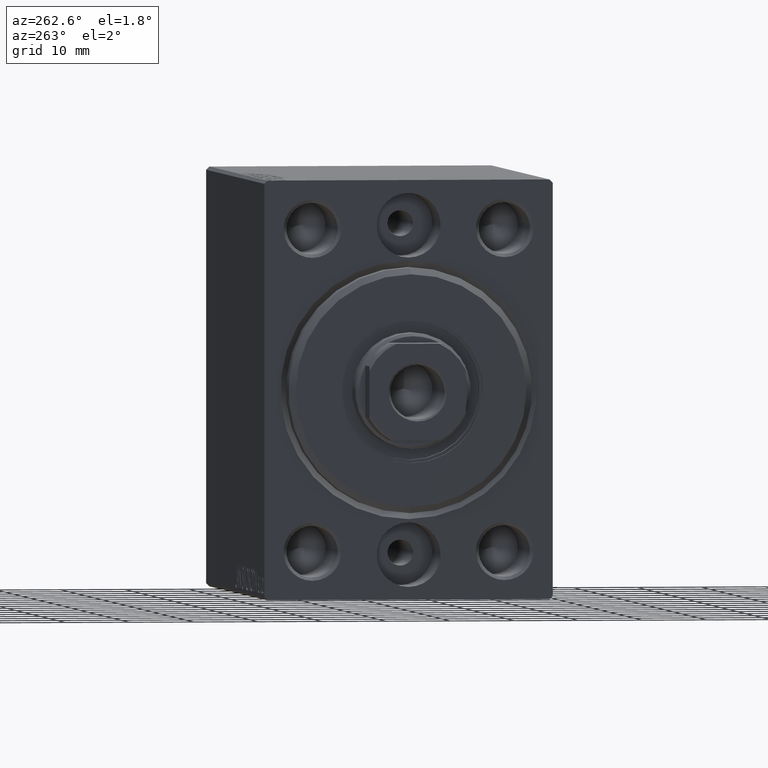
[diagram: clean part render]
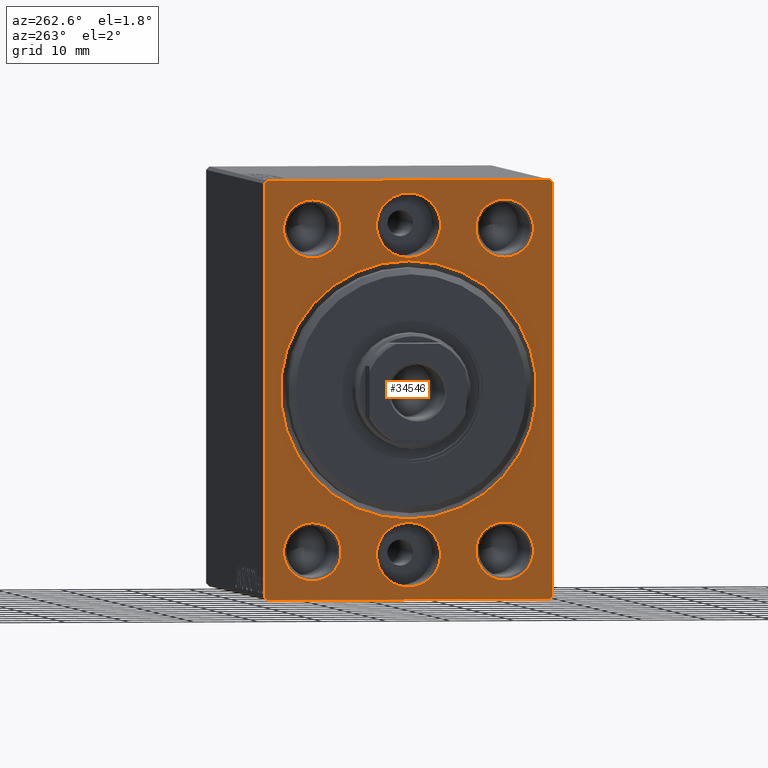
[diagram: same view with one face highlighted and labeled with its STEP entity id]
A machine part, auxiliary view. The second image highlights one B-rep face of the part: STEP entity #34546.
In plain terms, the highlighted planar face has unit normal (1, 0, 0).
Its self-contained STEP definition (entity closure, byte-faithful):
#350 = DIRECTION ( 'NONE',  ( -0.000000000000000000, 0.7071067811865474617, 0.7071067811865474617 ) ) ;
#1023 = DIRECTION ( 'NONE',  ( 0.000000000000000000, 0.000000000000000000, -1.000000000000000000 ) ) ;
#1095 = ORIENTED_EDGE ( 'NONE', *, *, #23883, .T. ) ;
#1267 = AXIS2_PLACEMENT_3D ( 'NONE', #5264, #15529, #21568 ) ;
#1679 = VERTEX_POINT ( 'NONE', #10817 ) ;
#1690 = VECTOR ( 'NONE', #37136, 1000.000000000000000 ) ;
#1974 = DIRECTION ( 'NONE',  ( 1.000000000000000000, 0.000000000000000000, 0.000000000000000000 ) ) ;
#2215 = EDGE_CURVE ( 'NONE', #25398, #7834, #31173, .T. ) ;
#2382 = DIRECTION ( 'NONE',  ( 1.000000000000000000, 0.000000000000000000, 0.000000000000000000 ) ) ;
#2495 = EDGE_CURVE ( 'NONE', #26576, #31650, #26207, .T. ) ;
#3053 = VERTEX_POINT ( 'NONE', #18561 ) ;
#3059 = CARTESIAN_POINT ( 'NONE',  ( 0.000000000000000000, 0.000000000000000000, 25.50000000000000000 ) ) ;
#3079 = EDGE_LOOP ( 'NONE', ( #7674, #35006 ) ) ;
#3252 = ORIENTED_EDGE ( 'NONE', *, *, #7005, .F. ) ;
#3399 = VERTEX_POINT ( 'NONE', #18719 ) ;
#3542 = CARTESIAN_POINT ( 'NONE',  ( 0.000000000000000000, 0.000000000000000000, 0.000000000000000000 ) ) ;
#3568 = CARTESIAN_POINT ( 'NONE',  ( 0.000000000000000000, 22.50000000000000000, 32.49999999999999289 ) ) ;
#3829 = CARTESIAN_POINT ( 'NONE',  ( 0.000000000000000000, 21.99999999999999289, -32.50000000000000711 ) ) ;
#3887 = CIRCLE ( 'NONE', #15975, 5.000000000000000888 ) ;
#3904 = DIRECTION ( 'NONE',  ( 0.000000000000000000, 0.000000000000000000, 1.000000000000000000 ) ) ;
#3943 = LINE ( 'NONE', #6409, #38354 ) ;
#3960 = DIRECTION ( 'NONE',  ( 1.000000000000000000, 0.000000000000000000, 0.000000000000000000 ) ) ;
#4089 = CARTESIAN_POINT ( 'NONE',  ( 0.000000000000000000, 15.00000000000000178, -29.49999999999997868 ) ) ;
#4604 = DIRECTION ( 'NONE',  ( 1.000000000000000000, 0.000000000000000000, 0.000000000000000000 ) ) ;
#5264 = CARTESIAN_POINT ( 'NONE',  ( 0.000000000000000000, -15.00000000000000000, 25.00000000000000000 ) ) ;
#5509 = DIRECTION ( 'NONE',  ( 1.000000000000000000, 0.000000000000000000, 0.000000000000000000 ) ) ;
#5556 = EDGE_CURVE ( 'NONE', #23673, #21761, #6248, .T. ) ;
#5623 = CIRCLE ( 'NONE', #7055, 5.000000000000000888 ) ;
#5656 = DIRECTION ( 'NONE',  ( 0.000000000000000000, 0.000000000000000000, 1.000000000000000000 ) ) ;
#5923 = CARTESIAN_POINT ( 'NONE',  ( 0.000000000000000000, -15.00000000000000000, 20.50000000000002487 ) ) ;
#5974 = CIRCLE ( 'NONE', #28039, 4.499999999999976019 ) ;
#6068 = CARTESIAN_POINT ( 'NONE',  ( 0.000000000000000000, 15.00000000000000178, 25.00000000000000000 ) ) ;
#6248 = CIRCLE ( 'NONE', #17646, 5.000000000000000888 ) ;
#6282 = DIRECTION ( 'NONE',  ( 1.000000000000000000, 0.000000000000000000, 0.000000000000000000 ) ) ;
#6409 = CARTESIAN_POINT ( 'NONE',  ( 0.000000000000000000, -22.49999999999999289, 31.99999999999998579 ) ) ;
#6793 = CARTESIAN_POINT ( 'NONE',  ( 0.000000000000000000, -21.99999999999999289, -32.50000000000000711 ) ) ;
#7005 = EDGE_CURVE ( 'NONE', #8034, #12197, #24042, .T. ) ;
#7055 = AXIS2_PLACEMENT_3D ( 'NONE', #13499, #24416, #3904 ) ;
#7127 = CARTESIAN_POINT ( 'NONE',  ( 0.000000000000000000, 21.99999999999998579, 32.49999999999999289 ) ) ;
#7674 = ORIENTED_EDGE ( 'NONE', *, *, #39263, .T. ) ;
#7834 = VERTEX_POINT ( 'NONE', #29322 ) ;
#8034 = VERTEX_POINT ( 'NONE', #17269 ) ;
#8378 = EDGE_CURVE ( 'NONE', #30626, #15633, #41942, .T. ) ;
#8401 = EDGE_LOOP ( 'NONE', ( #21753, #33268, #19887, #28230, #13322, #31819, #3252, #33223 ) ) ;
#8574 = EDGE_CURVE ( 'NONE', #25690, #3399, #34802, .T. ) ;
#9111 = AXIS2_PLACEMENT_3D ( 'NONE', #36080, #42985, #32745 ) ;
#10396 = VERTEX_POINT ( 'NONE', #38742 ) ;
#10507 = ORIENTED_EDGE ( 'NONE', *, *, #2495, .T. ) ;
#10588 = EDGE_CURVE ( 'NONE', #38473, #28267, #24596, .T. ) ;
#10817 = CARTESIAN_POINT ( 'NONE',  ( 0.000000000000000000, -15.00000000000000000, -29.49999999999997868 ) ) ;
#11673 = EDGE_LOOP ( 'NONE', ( #37924, #34302 ) ) ;
#12197 = VERTEX_POINT ( 'NONE', #3829 ) ;
#12527 = CARTESIAN_POINT ( 'NONE',  ( 0.000000000000000000, -15.00000000000000000, 25.00000000000000000 ) ) ;
#12532 = DIRECTION ( 'NONE',  ( 0.000000000000000000, 0.000000000000000000, -1.000000000000000000 ) ) ;
#12574 = EDGE_CURVE ( 'NONE', #1679, #3053, #5974, .T. ) ;
#12655 = CARTESIAN_POINT ( 'NONE',  ( 0.000000000000000000, 15.00000000000000178, -25.00000000000000000 ) ) ;
#12957 = EDGE_CURVE ( 'NONE', #7834, #25398, #29458, .T. ) ;
#13310 = DIRECTION ( 'NONE',  ( -1.000000000000000000, 0.000000000000000000, 0.000000000000000000 ) ) ;
#13322 = ORIENTED_EDGE ( 'NONE', *, *, #19547, .F. ) ;
#13499 = CARTESIAN_POINT ( 'NONE',  ( 0.000000000000000000, 0.000000000000000000, -25.50000000000000000 ) ) ;
#13793 = FACE_OUTER_BOUND ( 'NONE', #8401, .T. ) ;
#13811 = AXIS2_PLACEMENT_3D ( 'NONE', #6068, #25916, #12532 ) ;
#14094 = VERTEX_POINT ( 'NONE', #7127 ) ;
#14111 = VECTOR ( 'NONE', #37647, 1000.000000000000000 ) ;
#14460 = EDGE_CURVE ( 'NONE', #8034, #10396, #37345, .T. ) ;
#14574 = VERTEX_POINT ( 'NONE', #42230 ) ;
#14650 = CARTESIAN_POINT ( 'NONE',  ( 0.000000000000000000, -15.00000000000000000, 29.49999999999997868 ) ) ;
#14812 = VERTEX_POINT ( 'NONE', #30594 ) ;
#14855 = CARTESIAN_POINT ( 'NONE',  ( 0.000000000000000000, -15.00000000000000000, -25.00000000000000000 ) ) ;
#14950 = CARTESIAN_POINT ( 'NONE',  ( 0.000000000000000000, 15.00000000000000178, -25.00000000000000000 ) ) ;
#15171 = EDGE_CURVE ( 'NONE', #14094, #33412, #34116, .T. ) ;
#15529 = DIRECTION ( 'NONE',  ( 1.000000000000000000, 0.000000000000000000, 0.000000000000000000 ) ) ;
#15633 = VERTEX_POINT ( 'NONE', #25983 ) ;
#15975 = AXIS2_PLACEMENT_3D ( 'NONE', #3059, #13310, #30041 ) ;
#16448 = LINE ( 'NONE', #39864, #21679 ) ;
#16694 = FACE_BOUND ( 'NONE', #30105, .T. ) ;
#16931 = EDGE_LOOP ( 'NONE', ( #43009, #20226 ) ) ;
#16974 = CARTESIAN_POINT ( 'NONE',  ( 0.000000000000000000, 6.123233995736765296E-16, 20.49999999999999645 ) ) ;
#17269 = CARTESIAN_POINT ( 'NONE',  ( 0.000000000000000000, -21.99999999999999289, -32.50000000000000711 ) ) ;
#17551 = DIRECTION ( 'NONE',  ( 0.000000000000000000, 0.000000000000000000, -1.000000000000000000 ) ) ;
#17568 = ORIENTED_EDGE ( 'NONE', *, *, #2215, .T. ) ;
#17646 = AXIS2_PLACEMENT_3D ( 'NONE', #29718, #36193, #5656 ) ;
#18201 = ORIENTED_EDGE ( 'NONE', *, *, #8574, .T. ) ;
#18561 = CARTESIAN_POINT ( 'NONE',  ( 0.000000000000000000, -15.00000000000000000, -20.50000000000002487 ) ) ;
#18719 = CARTESIAN_POINT ( 'NONE',  ( 0.000000000000000000, 2.449293598294706907E-15, -20.00000000000000355 ) ) ;
#18881 = ORIENTED_EDGE ( 'NONE', *, *, #12574, .T. ) ;
#19005 = EDGE_CURVE ( 'NONE', #14574, #10396, #24576, .T. ) ;
#19074 = CARTESIAN_POINT ( 'NONE',  ( 0.000000000000000000, 0.000000000000000000, 20.00000000000000355 ) ) ;
#19547 = EDGE_CURVE ( 'NONE', #14812, #28913, #32462, .T. ) ;
#19609 = FACE_BOUND ( 'NONE', #3079, .T. ) ;
#19887 = ORIENTED_EDGE ( 'NONE', *, *, #15171, .F. ) ;
#20054 = FACE_BOUND ( 'NONE', #39093, .T. ) ;
#20226 = ORIENTED_EDGE ( 'NONE', *, *, #10588, .F. ) ;
#21348 = CARTESIAN_POINT ( 'NONE',  ( 0.000000000000000000, -15.00000000000000000, -25.00000000000000000 ) ) ;
#21568 = DIRECTION ( 'NONE',  ( 0.000000000000000000, 0.000000000000000000, -1.000000000000000000 ) ) ;
#21663 = DIRECTION ( 'NONE',  ( 0.000000000000000000, 0.000000000000000000, -1.000000000000000000 ) ) ;
#21679 = VECTOR ( 'NONE', #36738, 999.9999999999998863 ) ;
#21703 = VECTOR ( 'NONE', #26749, 1000.000000000000000 ) ;
#21753 = ORIENTED_EDGE ( 'NONE', *, *, #19005, .F. ) ;
#21761 = VERTEX_POINT ( 'NONE', #31028 ) ;
#22429 = DIRECTION ( 'NONE',  ( 0.000000000000000000, -1.067522139062650425E-16, 1.000000000000000000 ) ) ;
#22546 = CARTESIAN_POINT ( 'NONE',  ( 0.000000000000000000, 22.50000000000000000, 31.99999999999999289 ) ) ;
#23412 = AXIS2_PLACEMENT_3D ( 'NONE', #38929, #28459, #1023 ) ;
#23522 = CIRCLE ( 'NONE', #39170, 20.00000000000000355 ) ;
#23673 = VERTEX_POINT ( 'NONE', #42518 ) ;
#23883 = EDGE_CURVE ( 'NONE', #31650, #26576, #24732, .T. ) ;
#24030 = AXIS2_PLACEMENT_3D ( 'NONE', #12527, #6282, #36604 ) ;
#24042 = LINE ( 'NONE', #24268, #14111 ) ;
#24268 = CARTESIAN_POINT ( 'NONE',  ( 0.000000000000000000, -22.49999999999999289, -32.50000000000000711 ) ) ;
#24416 = DIRECTION ( 'NONE',  ( -1.000000000000000000, 0.000000000000000000, 0.000000000000000000 ) ) ;
#24418 = LINE ( 'NONE', #38014, #26250 ) ;
#24576 = LINE ( 'NONE', #25226, #31755 ) ;
#24596 = CIRCLE ( 'NONE', #41690, 5.000000000000000888 ) ;
#24732 = CIRCLE ( 'NONE', #24030, 4.499999999999976019 ) ;
#25226 = CARTESIAN_POINT ( 'NONE',  ( 0.000000000000000000, -22.49999999999999289, 32.49999999999998579 ) ) ;
#25398 = VERTEX_POINT ( 'NONE', #37183 ) ;
#25418 = EDGE_CURVE ( 'NONE', #14574, #33412, #3943, .T. ) ;
#25690 = VERTEX_POINT ( 'NONE', #19074 ) ;
#25916 = DIRECTION ( 'NONE',  ( 1.000000000000000000, 0.000000000000000000, 0.000000000000000000 ) ) ;
#25983 = CARTESIAN_POINT ( 'NONE',  ( 0.000000000000000000, 15.00000000000000178, -20.50000000000002487 ) ) ;
#26207 = CIRCLE ( 'NONE', #1267, 4.499999999999976019 ) ;
#26250 = VECTOR ( 'NONE', #31543, 999.9999999999998863 ) ;
#26576 = VERTEX_POINT ( 'NONE', #5923 ) ;
#26724 = FACE_BOUND ( 'NONE', #11673, .T. ) ;
#26749 = DIRECTION ( 'NONE',  ( 0.000000000000000000, -1.000000000000000000, -1.541976423090495633E-16 ) ) ;
#27122 = CARTESIAN_POINT ( 'NONE',  ( 0.000000000000000000, 0.000000000000000000, 25.50000000000000000 ) ) ;
#27330 = EDGE_CURVE ( 'NONE', #3053, #1679, #29810, .T. ) ;
#27636 = EDGE_CURVE ( 'NONE', #14094, #28913, #24418, .T. ) ;
#28039 = AXIS2_PLACEMENT_3D ( 'NONE', #14855, #4604, #32678 ) ;
#28230 = ORIENTED_EDGE ( 'NONE', *, *, #27636, .T. ) ;
#28267 = VERTEX_POINT ( 'NONE', #36531 ) ;
#28459 = DIRECTION ( 'NONE',  ( 1.000000000000000000, 0.000000000000000000, 0.000000000000000000 ) ) ;
#28913 = VERTEX_POINT ( 'NONE', #22546 ) ;
#28914 = DIRECTION ( 'NONE',  ( 0.000000000000000000, 0.000000000000000000, -1.000000000000000000 ) ) ;
#28931 = DIRECTION ( 'NONE',  ( 0.000000000000000000, 0.000000000000000000, -1.000000000000000000 ) ) ;
#29126 = ORIENTED_EDGE ( 'NONE', *, *, #12957, .T. ) ;
#29322 = CARTESIAN_POINT ( 'NONE',  ( 0.000000000000000000, 15.00000000000000178, 20.50000000000002487 ) ) ;
#29458 = CIRCLE ( 'NONE', #13811, 4.499999999999976019 ) ;
#29718 = CARTESIAN_POINT ( 'NONE',  ( 0.000000000000000000, 0.000000000000000000, -25.50000000000000000 ) ) ;
#29810 = CIRCLE ( 'NONE', #32681, 4.499999999999976019 ) ;
#30041 = DIRECTION ( 'NONE',  ( 0.000000000000000000, 0.000000000000000000, 1.000000000000000000 ) ) ;
#30105 = EDGE_LOOP ( 'NONE', ( #41769, #18881 ) ) ;
#30296 = FACE_BOUND ( 'NONE', #16931, .T. ) ;
#30594 = CARTESIAN_POINT ( 'NONE',  ( 0.000000000000000000, 22.50000000000000711, -31.99999999999999289 ) ) ;
#30626 = VERTEX_POINT ( 'NONE', #4089 ) ;
#31028 = CARTESIAN_POINT ( 'NONE',  ( 0.000000000000000000, 6.123233995736765296E-16, -30.50000000000000000 ) ) ;
#31053 = EDGE_LOOP ( 'NONE', ( #18201, #36993 ) ) ;
#31173 = CIRCLE ( 'NONE', #9111, 4.499999999999976019 ) ;
#31543 = DIRECTION ( 'NONE',  ( -0.000000000000000000, 0.7071067811865574537, -0.7071067811865376918 ) ) ;
#31650 = VERTEX_POINT ( 'NONE', #14650 ) ;
#31755 = VECTOR ( 'NONE', #21663, 1000.000000000000000 ) ;
#31819 = ORIENTED_EDGE ( 'NONE', *, *, #44110, .T. ) ;
#31873 = EDGE_CURVE ( 'NONE', #21761, #23673, #5623, .T. ) ;
#32462 = LINE ( 'NONE', #43154, #42453 ) ;
#32678 = DIRECTION ( 'NONE',  ( 0.000000000000000000, 0.000000000000000000, -1.000000000000000000 ) ) ;
#32681 = AXIS2_PLACEMENT_3D ( 'NONE', #21348, #3960, #17551 ) ;
#32739 = AXIS2_PLACEMENT_3D ( 'NONE', #3542, #43463, #40999 ) ;
#32745 = DIRECTION ( 'NONE',  ( 0.000000000000000000, 0.000000000000000000, -1.000000000000000000 ) ) ;
#32869 = AXIS2_PLACEMENT_3D ( 'NONE', #14950, #1974, #38796 ) ;
#33223 = ORIENTED_EDGE ( 'NONE', *, *, #14460, .T. ) ;
#33268 = ORIENTED_EDGE ( 'NONE', *, *, #25418, .T. ) ;
#33412 = VERTEX_POINT ( 'NONE', #39560 ) ;
#33646 = PLANE ( 'NONE',  #32739 ) ;
#34090 = FACE_BOUND ( 'NONE', #36483, .T. ) ;
#34116 = LINE ( 'NONE', #3568, #21703 ) ;
#34302 = ORIENTED_EDGE ( 'NONE', *, *, #31873, .F. ) ;
#34546 = ADVANCED_FACE ( 'NONE', ( #26724, #30296, #40563, #16694, #34090, #20054, #19609, #13793 ), #33646, .F. ) ;
#34802 = CIRCLE ( 'NONE', #23412, 20.00000000000000355 ) ;
#34806 = EDGE_CURVE ( 'NONE', #3399, #25690, #23522, .T. ) ;
#35006 = ORIENTED_EDGE ( 'NONE', *, *, #8378, .T. ) ;
#36080 = CARTESIAN_POINT ( 'NONE',  ( 0.000000000000000000, 15.00000000000000178, 25.00000000000000000 ) ) ;
#36193 = DIRECTION ( 'NONE',  ( -1.000000000000000000, 0.000000000000000000, 0.000000000000000000 ) ) ;
#36483 = EDGE_LOOP ( 'NONE', ( #1095, #10507 ) ) ;
#36531 = CARTESIAN_POINT ( 'NONE',  ( 0.000000000000000000, 0.000000000000000000, 30.50000000000000000 ) ) ;
#36604 = DIRECTION ( 'NONE',  ( 0.000000000000000000, 0.000000000000000000, -1.000000000000000000 ) ) ;
#36738 = DIRECTION ( 'NONE',  ( 0.000000000000000000, -0.7071067811865376918, -0.7071067811865574537 ) ) ;
#36993 = ORIENTED_EDGE ( 'NONE', *, *, #34806, .T. ) ;
#37136 = DIRECTION ( 'NONE',  ( -0.000000000000000000, -0.7071067811865524577, 0.7071067811865426878 ) ) ;
#37183 = CARTESIAN_POINT ( 'NONE',  ( 0.000000000000000000, 15.00000000000000178, 29.49999999999997868 ) ) ;
#37345 = LINE ( 'NONE', #6793, #1690 ) ;
#37647 = DIRECTION ( 'NONE',  ( 0.000000000000000000, 1.000000000000000000, 0.000000000000000000 ) ) ;
#37924 = ORIENTED_EDGE ( 'NONE', *, *, #5556, .F. ) ;
#38014 = CARTESIAN_POINT ( 'NONE',  ( 0.000000000000000000, 21.99999999999998579, 32.49999999999999289 ) ) ;
#38354 = VECTOR ( 'NONE', #350, 1000.000000000000114 ) ;
#38473 = VERTEX_POINT ( 'NONE', #16974 ) ;
#38742 = CARTESIAN_POINT ( 'NONE',  ( 0.000000000000000000, -22.49999999999999289, -32.00000000000001421 ) ) ;
#38796 = DIRECTION ( 'NONE',  ( 0.000000000000000000, 0.000000000000000000, -1.000000000000000000 ) ) ;
#38929 = CARTESIAN_POINT ( 'NONE',  ( 0.000000000000000000, 0.000000000000000000, 0.000000000000000000 ) ) ;
#39093 = EDGE_LOOP ( 'NONE', ( #17568, #29126 ) ) ;
#39170 = AXIS2_PLACEMENT_3D ( 'NONE', #42315, #5509, #28914 ) ;
#39263 = EDGE_CURVE ( 'NONE', #15633, #30626, #39266, .T. ) ;
#39266 = CIRCLE ( 'NONE', #32869, 4.499999999999976019 ) ;
#39560 = CARTESIAN_POINT ( 'NONE',  ( 0.000000000000000000, -21.99999999999997868, 32.49999999999998579 ) ) ;
#39864 = CARTESIAN_POINT ( 'NONE',  ( 0.000000000000000000, 22.50000000000000711, -31.99999999999999289 ) ) ;
#40563 = FACE_BOUND ( 'NONE', #31053, .T. ) ;
#40946 = DIRECTION ( 'NONE',  ( 0.000000000000000000, 0.000000000000000000, 1.000000000000000000 ) ) ;
#40999 = DIRECTION ( 'NONE',  ( 0.000000000000000000, 0.000000000000000000, -1.000000000000000000 ) ) ;
#41388 = DIRECTION ( 'NONE',  ( -1.000000000000000000, 0.000000000000000000, 0.000000000000000000 ) ) ;
#41690 = AXIS2_PLACEMENT_3D ( 'NONE', #27122, #41388, #40946 ) ;
#41769 = ORIENTED_EDGE ( 'NONE', *, *, #27330, .T. ) ;
#41942 = CIRCLE ( 'NONE', #44060, 4.499999999999976019 ) ;
#42230 = CARTESIAN_POINT ( 'NONE',  ( 0.000000000000000000, -22.49999999999999289, 31.99999999999998579 ) ) ;
#42315 = CARTESIAN_POINT ( 'NONE',  ( 0.000000000000000000, 0.000000000000000000, 0.000000000000000000 ) ) ;
#42453 = VECTOR ( 'NONE', #22429, 1000.000000000000000 ) ;
#42518 = CARTESIAN_POINT ( 'NONE',  ( 0.000000000000000000, 0.000000000000000000, -20.49999999999999645 ) ) ;
#42985 = DIRECTION ( 'NONE',  ( 1.000000000000000000, 0.000000000000000000, 0.000000000000000000 ) ) ;
#43009 = ORIENTED_EDGE ( 'NONE', *, *, #44124, .F. ) ;
#43154 = CARTESIAN_POINT ( 'NONE',  ( 0.000000000000000000, 22.50000000000000711, -32.50000000000000711 ) ) ;
#43463 = DIRECTION ( 'NONE',  ( 1.000000000000000000, 0.000000000000000000, 0.000000000000000000 ) ) ;
#44060 = AXIS2_PLACEMENT_3D ( 'NONE', #12655, #2382, #28931 ) ;
#44110 = EDGE_CURVE ( 'NONE', #14812, #12197, #16448, .T. ) ;
#44124 = EDGE_CURVE ( 'NONE', #28267, #38473, #3887, .T. ) ;